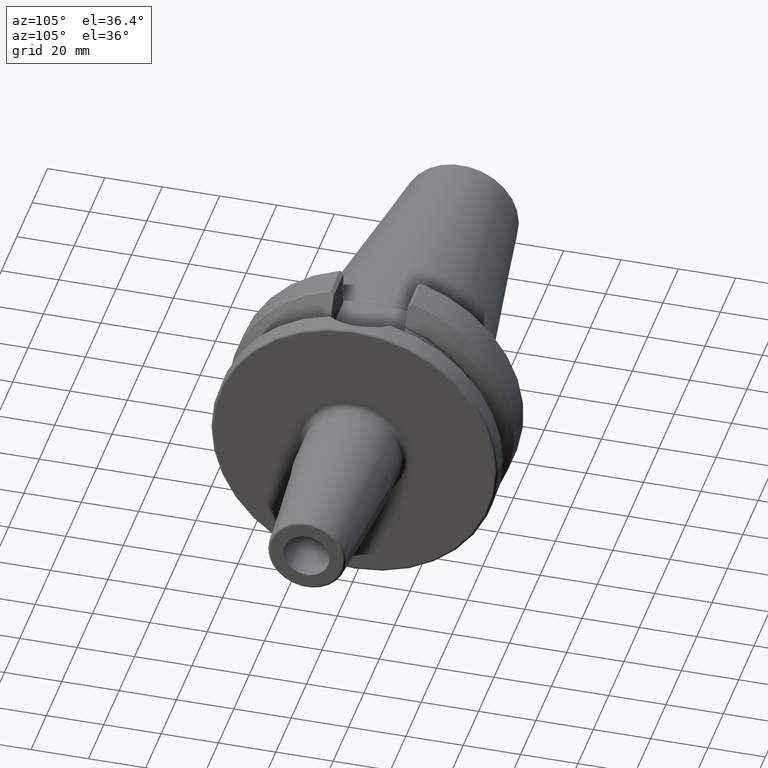
[diagram: clean part render]
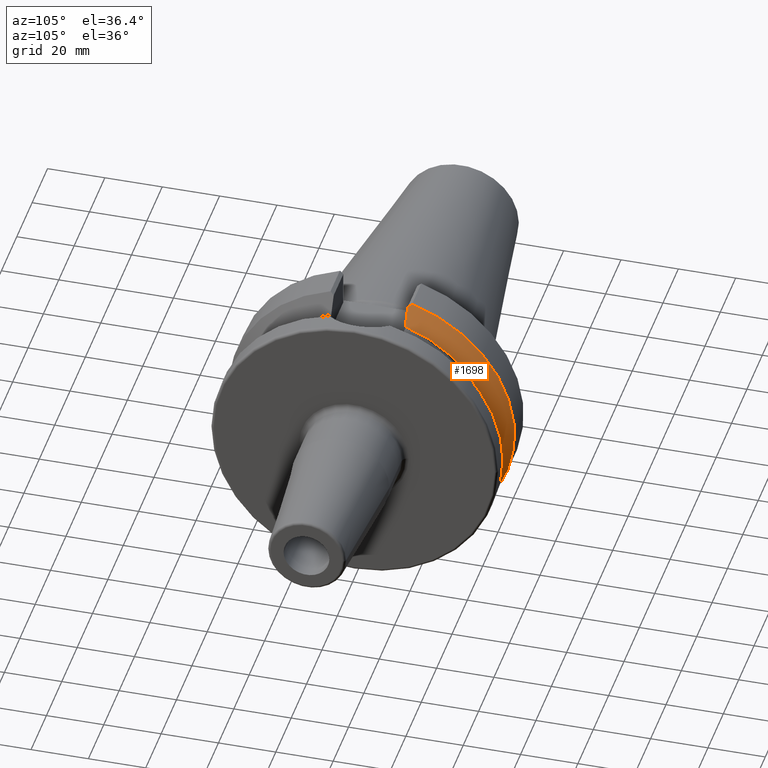
[diagram: same view with one face highlighted and labeled with its STEP entity id]
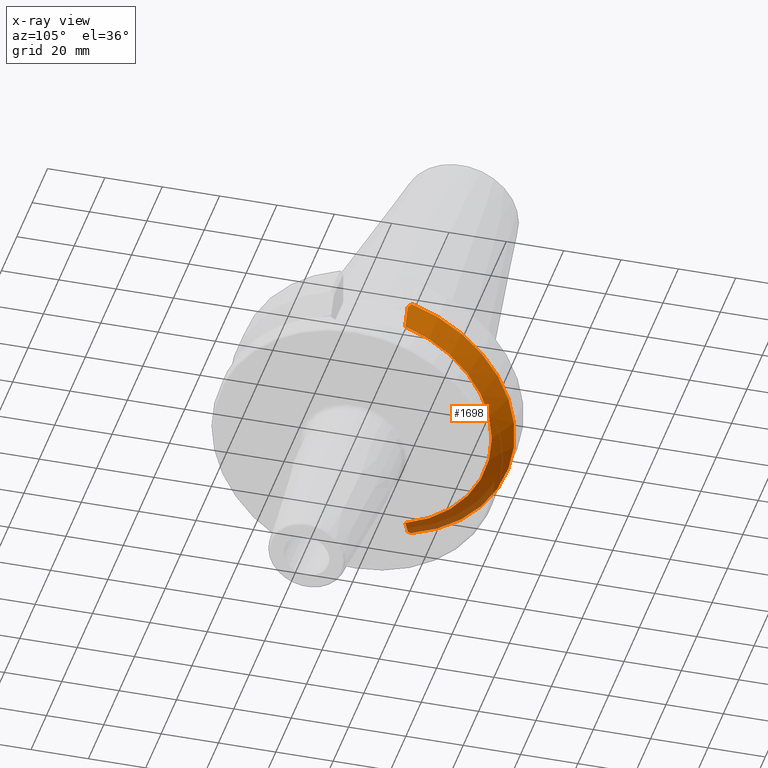
[diagram: x-ray of the same camera — body ghosted, the highlighted face saturated]
A machine part, auxiliary view. The second image highlights one B-rep face of the part: STEP entity #1698.
The next image is the same camera in x-ray: the body ghosted, the highlighted face saturated — about 10% of this face is hidden behind the body in this view.
In plain terms, the highlighted conical surface has half-angle 60 deg.
Its self-contained STEP definition (entity closure, byte-faithful):
#155=CARTESIAN_POINT('',(1.622095963665E1,1.29025E1,-4.730399207105E1));
#156=CARTESIAN_POINT('',(1.662669026161E1,1.29025E1,-4.657557402361E1));
#157=CARTESIAN_POINT('',(1.742260565809E1,1.29025E1,-4.514431612004E1));
#158=CARTESIAN_POINT('',(1.856905625010E1,1.29025E1,-4.307542937668E1));
#159=CARTESIAN_POINT('',(1.930314152587E1,1.29025E1,-4.174554585365E1));
#160=CARTESIAN_POINT('',(1.96625E1,1.29025E1,-4.109315892118E1));
#199=CARTESIAN_POINT('',(1.96625E1,0.E0,0.E0));
#200=DIRECTION('',(1.E0,0.E0,0.E0));
#201=DIRECTION('',(0.E0,2.995626091154E-1,-9.540766443111E-1));
#202=AXIS2_PLACEMENT_3D('',#199,#200,#201);
#236=CARTESIAN_POINT('',(1.566933176383E1,0.E0,0.E0));
#237=DIRECTION('',(1.E0,0.E0,0.E0));
#238=DIRECTION('',(0.E0,2.773348004750E-1,-9.607733387462E-1));
#239=AXIS2_PLACEMENT_3D('',#236,#237,#238);
#619=CARTESIAN_POINT('',(1.622095963665E1,1.29025E1,-4.730399207105E1));
#620=CARTESIAN_POINT('',(1.613096430694E1,1.306014121039E1,-4.742256511233E1));
#621=CARTESIAN_POINT('',(1.594903614998E1,1.337791318372E1,-4.766158376246E1));
#622=CARTESIAN_POINT('',(1.576321741956E1,1.370065861291E1,-4.790434329853E1));
#623=CARTESIAN_POINT('',(1.566933176383E1,1.386327333875E1,-4.802665727057E1));
#629=CARTESIAN_POINT('',(1.566933176383E1,1.418629688696E1,4.793223484134E1));
#630=CARTESIAN_POINT('',(1.579541037781E1,1.396792232179E1,4.776912806803E1));
#631=CARTESIAN_POINT('',(1.604410287708E1,1.353557739826E1,4.744620408016E1));
#632=CARTESIAN_POINT('',(1.628589948132E1,1.311205342535E1,4.712986857385E1));
#633=CARTESIAN_POINT('',(1.640508297825E1,1.29025E1,4.697335042340E1));
#668=CARTESIAN_POINT('',(1.96625E1,1.29025E1,4.109315892118E1));
#669=CARTESIAN_POINT('',(1.932181966297E1,1.29025E1,4.171163717070E1));
#670=CARTESIAN_POINT('',(1.862628256782E1,1.29025E1,4.297182203666E1));
#671=CARTESIAN_POINT('',(1.754114212137E1,1.29025E1,4.493063136453E1));
#672=CARTESIAN_POINT('',(1.678855217457E1,1.29025E1,4.628456220339E1));
#673=CARTESIAN_POINT('',(1.640508297825E1,1.29025E1,4.697335042340E1));
#1216=CARTESIAN_POINT('',(1.96625E1,1.29025E1,-4.109315892118E1));
#1217=CARTESIAN_POINT('',(1.96625E1,1.29025E1,4.109315892118E1));
#1218=VERTEX_POINT('',#1216);
#1219=VERTEX_POINT('',#1217);
#1324=VERTEX_POINT('',#673);
#1332=VERTEX_POINT('',#155);
#1342=CARTESIAN_POINT('',(1.566933176383E1,1.386327333875E1,-4.802665727057E1));
#1343=CARTESIAN_POINT('',(1.566933176383E1,1.418629688696E1,4.793223484134E1));
#1344=VERTEX_POINT('',#1342);
#1345=VERTEX_POINT('',#1343);
#1681=CARTESIAN_POINT('',(1.766591588191E1,0.E0,0.E0));
#1682=DIRECTION('',(-1.E0,0.E0,0.E0));
#1683=DIRECTION('',(0.E0,1.E0,0.E0));
#1684=AXIS2_PLACEMENT_3D('',#1681,#1682,#1683);
#1685=CONICAL_SURFACE('',#1684,4.652931486589E1,6.E1);
#1687=ORIENTED_EDGE('',*,*,#1686,.F.);
#1689=ORIENTED_EDGE('',*,*,#1688,.F.);
#1690=ORIENTED_EDGE('',*,*,#1632,.T.);
#1691=ORIENTED_EDGE('',*,*,#1655,.T.);
#1693=ORIENTED_EDGE('',*,*,#1692,.T.);
#1695=ORIENTED_EDGE('',*,*,#1694,.F.);
#1696=EDGE_LOOP('',(#1687,#1689,#1690,#1691,#1693,#1695));
#1697=FACE_OUTER_BOUND('',#1696,.F.);
#1698=ADVANCED_FACE('',(#1697),#1685,.T.);
#161=B_SPLINE_CURVE_WITH_KNOTS('',3,(#155,#156,#157,#158,#159,#160),
.UNSPECIFIED.,.F.,.F.,(4,1,1,4),(0.E0,3.333333333333E-1,6.666666666667E-1,1.E0),
.UNSPECIFIED.);
#203=CIRCLE('',#202,4.307112973177E1);
#240=CIRCLE('',#239,4.99875E1);
#624=B_SPLINE_CURVE_WITH_KNOTS('',3,(#619,#620,#621,#622,#623),.UNSPECIFIED.,
.F.,.F.,(4,1,4),(0.E0,5.E-1,1.E0),.UNSPECIFIED.);
#634=B_SPLINE_CURVE_WITH_KNOTS('',3,(#629,#630,#631,#632,#633),.UNSPECIFIED.,
.F.,.F.,(4,1,4),(0.E0,5.E-1,1.E0),.UNSPECIFIED.);
#674=B_SPLINE_CURVE_WITH_KNOTS('',3,(#668,#669,#670,#671,#672,#673),
.UNSPECIFIED.,.F.,.F.,(4,1,1,4),(0.E0,3.333333333333E-1,6.666666666667E-1,1.E0),
.UNSPECIFIED.);
#1632=EDGE_CURVE('',#1332,#1218,#161,.T.);
#1655=EDGE_CURVE('',#1218,#1219,#203,.T.);
#1686=EDGE_CURVE('',#1344,#1345,#240,.T.);
#1688=EDGE_CURVE('',#1332,#1344,#624,.T.);
#1692=EDGE_CURVE('',#1219,#1324,#674,.T.);
#1694=EDGE_CURVE('',#1345,#1324,#634,.T.);